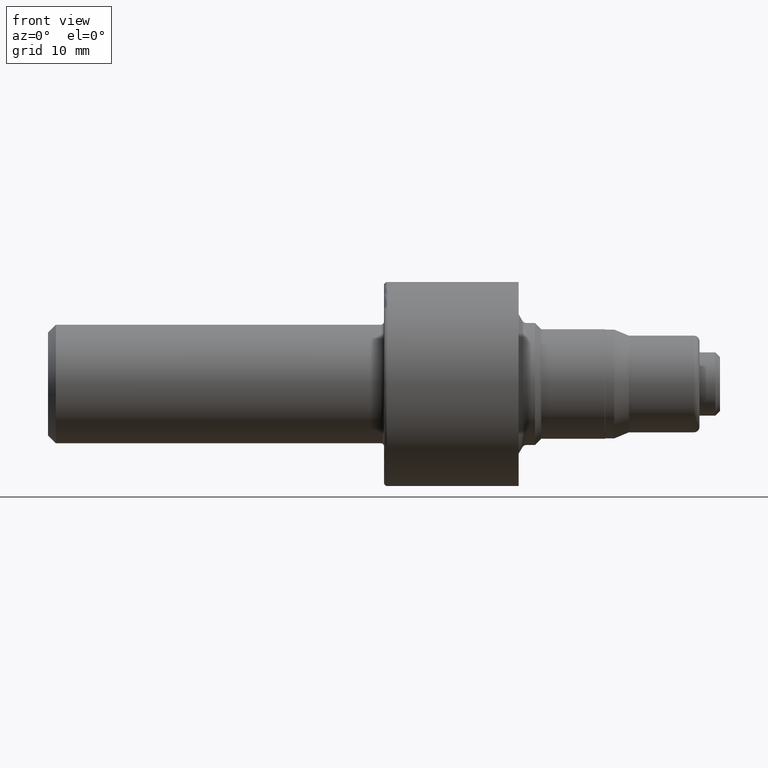
[diagram: clean part render]
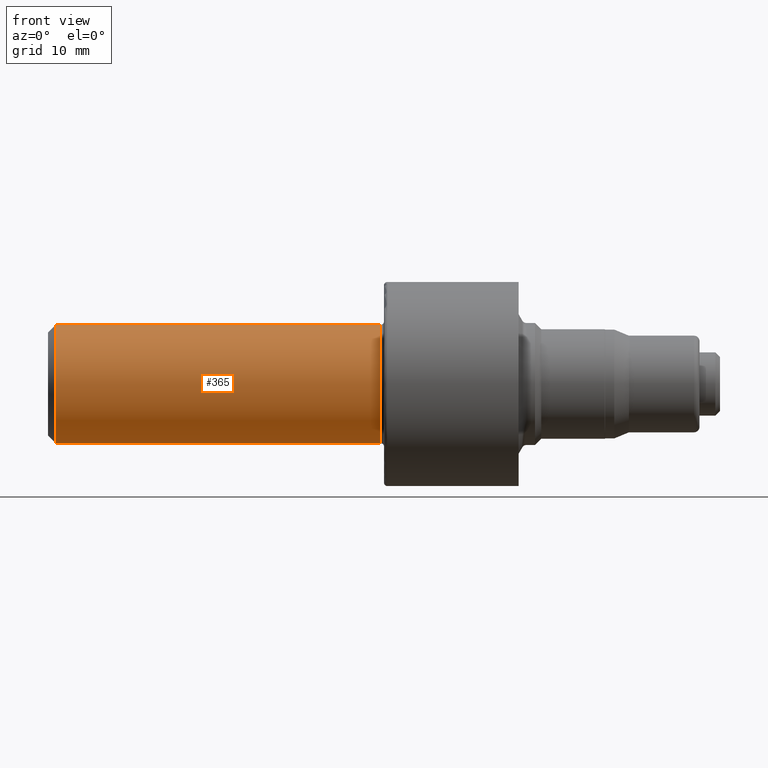
[diagram: same view with one face highlighted and labeled with its STEP entity id]
A machine part, front view. The second image highlights one B-rep face of the part: STEP entity #365.
In plain terms, the highlighted cylindrical surface (partial cylindrical patch) has radius 9.5212 mm, axis along (-1, -0, -0).
Its self-contained STEP definition (entity closure, byte-faithful):
#15 = DIRECTION ( 'NONE',  ( -1.000000000000000000, -0.0000000000000000000, -0.0000000000000000000 ) ) ;
#19 = AXIS2_PLACEMENT_3D ( 'NONE', #464, #15, #648 ) ;
#62 = DIRECTION ( 'NONE',  ( -1.000000000000000000, -0.0000000000000000000, -0.0000000000000000000 ) ) ;
#81 = CARTESIAN_POINT ( 'NONE',  ( 0.0000000000000000000, 0.0000000000000000000, 0.3748500000000001275 ) ) ;
#114 = VECTOR ( 'NONE', #583, 39.37007874015748143 ) ;
#154 = EDGE_CURVE ( 'NONE', #616, #318, #995, .T. ) ;
#165 = ORIENTED_EDGE ( 'NONE', *, *, #154, .T. ) ;
#196 = EDGE_CURVE ( 'NONE', #318, #285, #329, .T. ) ;
#224 = FACE_OUTER_BOUND ( 'NONE', #409, .T. ) ;
#285 = VERTEX_POINT ( 'NONE', #468 ) ;
#318 = VERTEX_POINT ( 'NONE', #610 ) ;
#329 = LINE ( 'NONE', #81, #963 ) ;
#347 = LINE ( 'NONE', #484, #114 ) ;
#365 = ADVANCED_FACE ( 'NONE', ( #224 ), #1091, .T. ) ;
#366 = CIRCLE ( 'NONE', #738, 0.3748500000000000165 ) ;
#409 = EDGE_LOOP ( 'NONE', ( #1052, #165, #537, #445 ) ) ;
#445 = ORIENTED_EDGE ( 'NONE', *, *, #500, .F. ) ;
#462 = DIRECTION ( 'NONE',  ( -1.000000000000000000, -0.0000000000000000000, -0.0000000000000000000 ) ) ;
#464 = CARTESIAN_POINT ( 'NONE',  ( 0.0000000000000000000, 0.0000000000000000000, 0.0000000000000000000 ) ) ;
#468 = CARTESIAN_POINT ( 'NONE',  ( 0.05000000000000000278, 4.590588526603853748E-17, 0.3748500000000000165 ) ) ;
#484 = CARTESIAN_POINT ( 'NONE',  ( 0.0000000000000000000, 4.590588526603854364E-17, -0.3748500000000001275 ) ) ;
#499 = DIRECTION ( 'NONE',  ( 0.0000000000000000000, 0.0000000000000000000, 1.000000000000000000 ) ) ;
#500 = EDGE_CURVE ( 'NONE', #533, #285, #366, .T. ) ;
#533 = VERTEX_POINT ( 'NONE', #596 ) ;
#537 = ORIENTED_EDGE ( 'NONE', *, *, #196, .T. ) ;
#583 = DIRECTION ( 'NONE',  ( -1.000000000000000000, -0.0000000000000000000, -0.0000000000000000000 ) ) ;
#596 = CARTESIAN_POINT ( 'NONE',  ( 0.05000000000000000278, 0.0000000000000000000, -0.3748500000000000165 ) ) ;
#610 = CARTESIAN_POINT ( 'NONE',  ( 2.104999999999999982, 0.0000000000000000000, 0.3748500000000001275 ) ) ;
#616 = VERTEX_POINT ( 'NONE', #1053 ) ;
#645 = AXIS2_PLACEMENT_3D ( 'NONE', #954, #813, #1018 ) ;
#648 = DIRECTION ( 'NONE',  ( 0.0000000000000000000, 0.0000000000000000000, 1.000000000000000000 ) ) ;
#738 = AXIS2_PLACEMENT_3D ( 'NONE', #1004, #62, #499 ) ;
#813 = DIRECTION ( 'NONE',  ( -1.000000000000000000, -0.0000000000000000000, -0.0000000000000000000 ) ) ;
#896 = EDGE_CURVE ( 'NONE', #616, #533, #347, .T. ) ;
#954 = CARTESIAN_POINT ( 'NONE',  ( 2.104999999999999982, 0.0000000000000000000, 0.0000000000000000000 ) ) ;
#963 = VECTOR ( 'NONE', #462, 39.37007874015748143 ) ;
#995 = CIRCLE ( 'NONE', #645, 0.3748500000000001275 ) ;
#1004 = CARTESIAN_POINT ( 'NONE',  ( 0.05000000000000000278, 0.0000000000000000000, 0.0000000000000000000 ) ) ;
#1018 = DIRECTION ( 'NONE',  ( 0.0000000000000000000, 0.0000000000000000000, 1.000000000000000000 ) ) ;
#1052 = ORIENTED_EDGE ( 'NONE', *, *, #896, .F. ) ;
#1053 = CARTESIAN_POINT ( 'NONE',  ( 2.104999999999999982, 4.590588526603854364E-17, -0.3748500000000001275 ) ) ;
#1091 = CYLINDRICAL_SURFACE ( 'NONE', #19, 0.3748500000000001275 ) ;